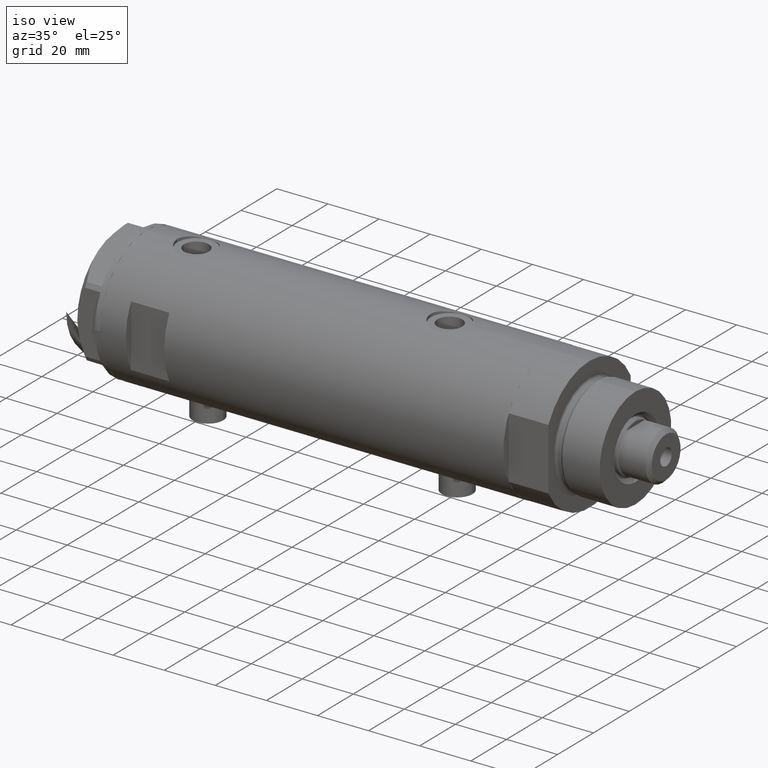
[diagram: clean part render]
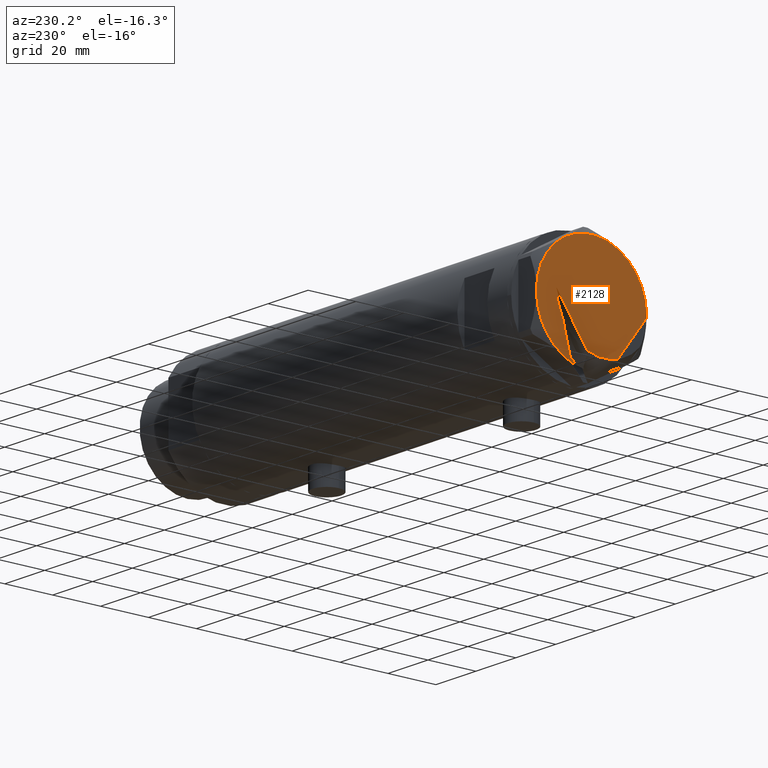
[diagram: tour spotlight — one face highlighted and labeled with its STEP entity id]
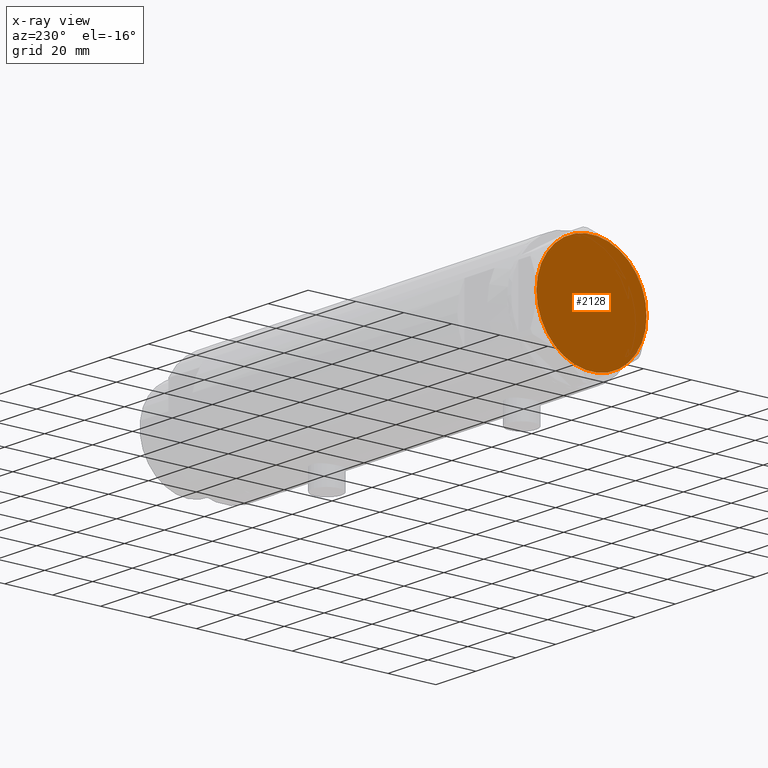
[diagram: x-ray of the same camera — body ghosted, this tour face saturated]
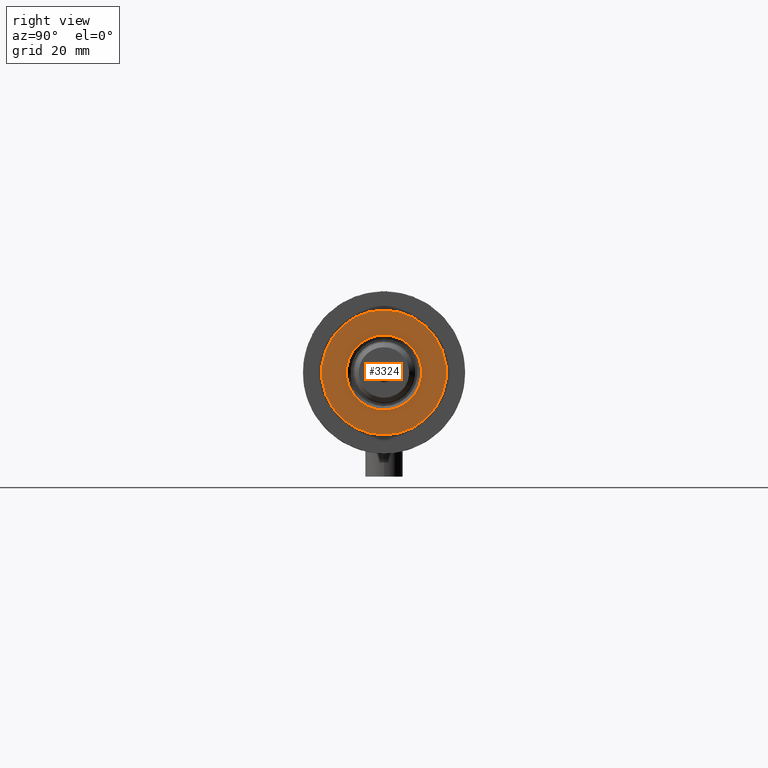
[diagram: tour spotlight — one face highlighted and labeled with its STEP entity id]
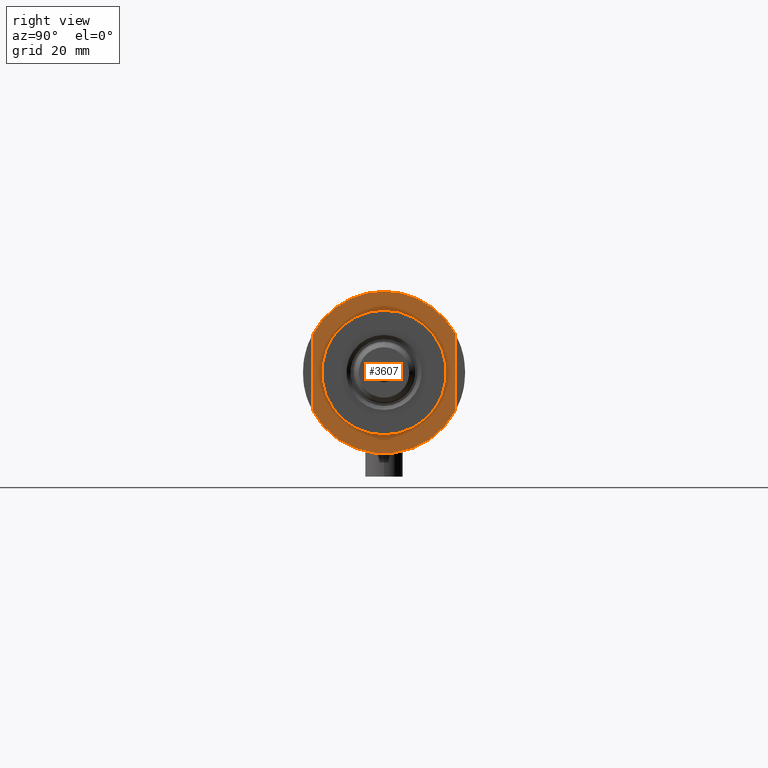
[diagram: tour spotlight — one face highlighted and labeled with its STEP entity id]
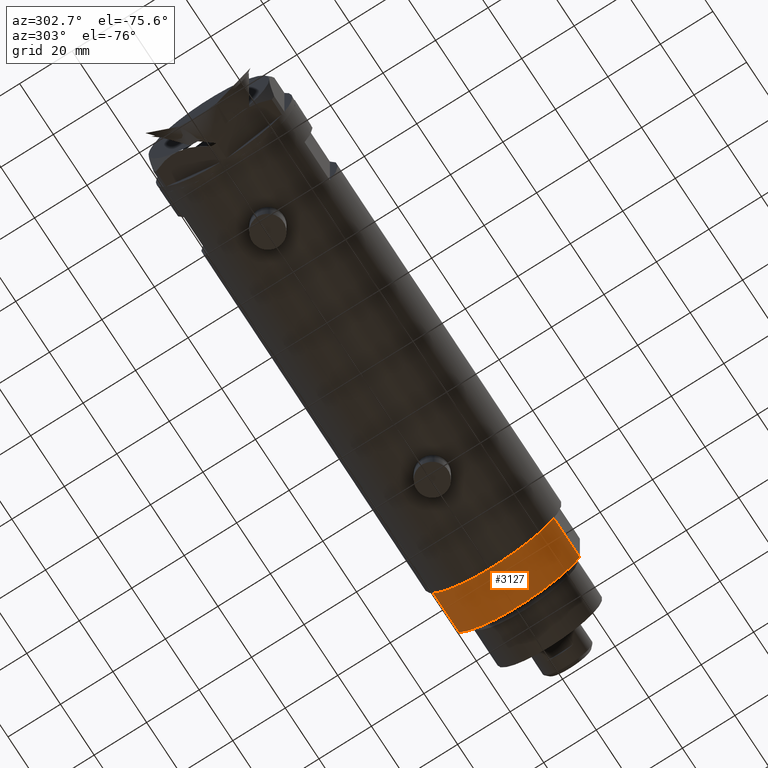
[diagram: tour spotlight — one face highlighted and labeled with its STEP entity id]
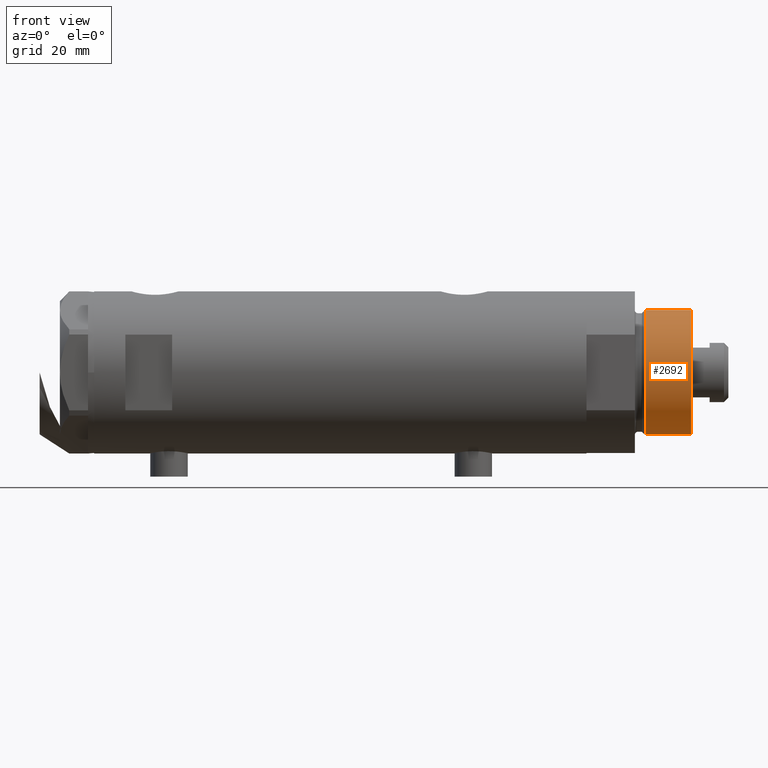
[diagram: tour spotlight — one face highlighted and labeled with its STEP entity id]
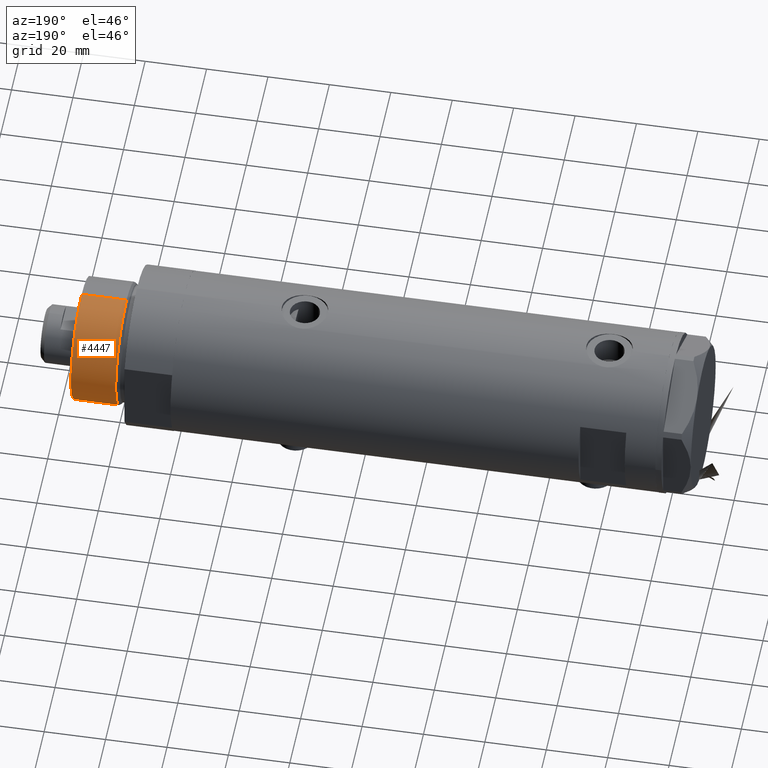
[diagram: tour spotlight — one face highlighted and labeled with its STEP entity id]
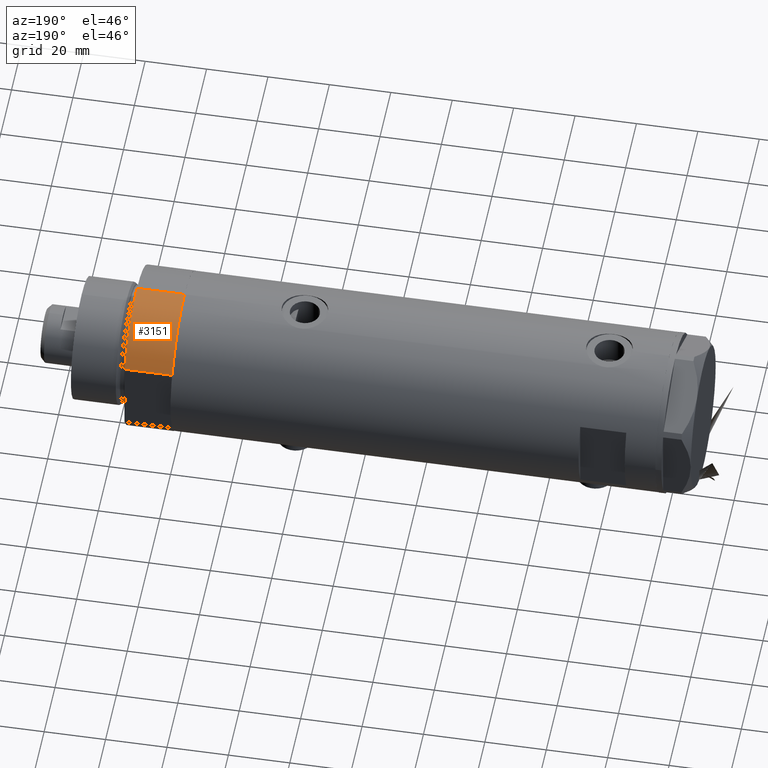
[diagram: tour spotlight — one face highlighted and labeled with its STEP entity id]
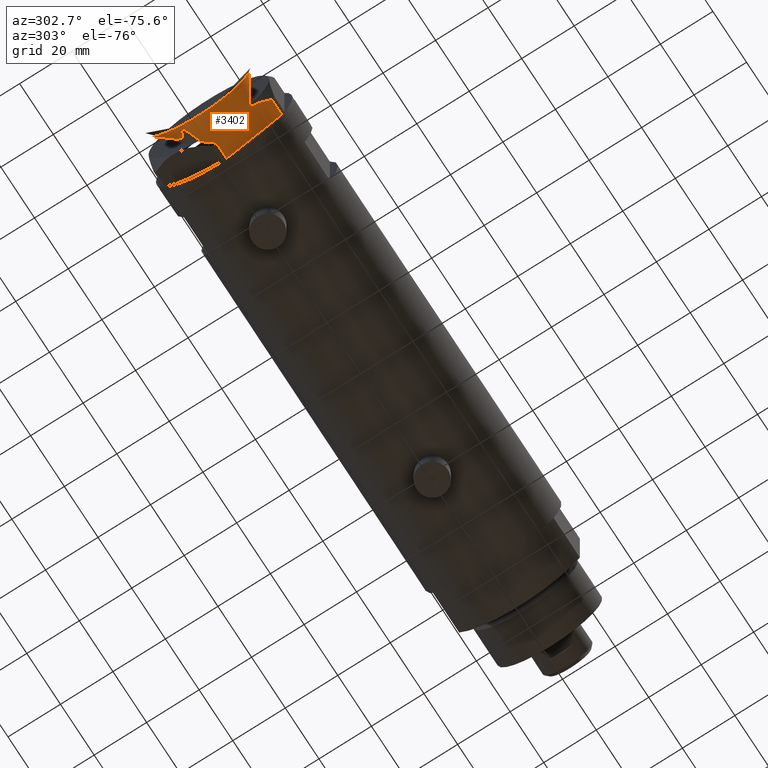
[diagram: tour spotlight — one face highlighted and labeled with its STEP entity id]
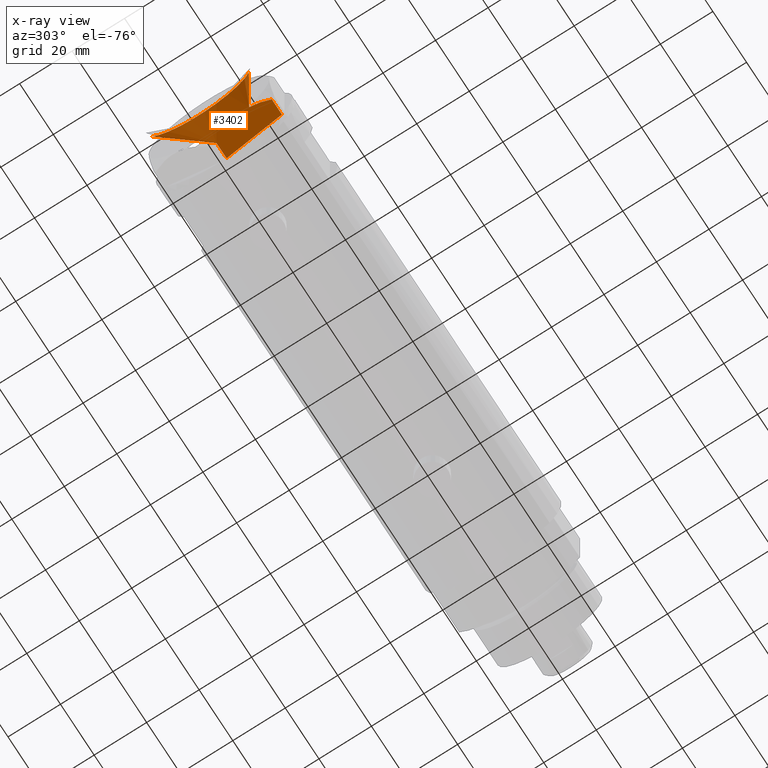
[diagram: x-ray of the same camera — body ghosted, this tour face saturated]
A machine part: a face-by-face anatomy tour. The part has 134 B-rep faces; the first image is the clean iso view, then the 8 largest visible faces are spotlighted one at a time (largest first), each with its STEP entity span.

Face 1 — auxiliary view, entity #2128. An x-ray twin of the same camera follows (body ghosted, this face saturated) — the face is partly hidden behind the body. In plain terms, the highlighted planar face has unit normal (-1, -0, 0).
Definition (entity closure, byte-faithful):
#86 = EDGE_CURVE ( 'NONE', #307, #201, #801, .T. ) ;
#131 = DIRECTION ( 'NONE',  ( 1.000000000000000000, 0.000000000000000000, 0.000000000000000000 ) ) ;
#201 = VERTEX_POINT ( 'NONE', #4628 ) ;
#259 = EDGE_CURVE ( 'NONE', #2559, #1196, #875, .T. ) ;
#307 = VERTEX_POINT ( 'NONE', #3010 ) ;
#353 = DIRECTION ( 'NONE',  ( 1.000000000000000000, 0.000000000000000000, 0.000000000000000000 ) ) ;
#428 = EDGE_CURVE ( 'NONE', #201, #2559, #1423, .T. ) ;
#458 = DIRECTION ( 'NONE',  ( 1.000000000000000000, 0.000000000000000000, 0.000000000000000000 ) ) ;
#629 = ORIENTED_EDGE ( 'NONE', *, *, #86, .T. ) ;
#787 = ORIENTED_EDGE ( 'NONE', *, *, #259, .T. ) ;
#801 = CIRCLE ( 'NONE', #2685, 23.00000000000004619 ) ;
#875 = CIRCLE ( 'NONE', #3112, 23.00000000000004619 ) ;
#921 = DIRECTION ( 'NONE',  ( 0.000000000000000000, 0.000000000000000000, 1.000000000000000000 ) ) ;
#946 = CARTESIAN_POINT ( 'NONE',  ( -23.00000000000004619, -8.112498833180673323E-14, 9.000000000000000000 ) ) ;
#947 = CIRCLE ( 'NONE', #3710, 23.00000000000004619 ) ;
#1110 = DIRECTION ( 'NONE',  ( 0.000000000000000000, 0.000000000000000000, 1.000000000000000000 ) ) ;
#1136 = CARTESIAN_POINT ( 'NONE',  ( 0.000000000000000000, 0.000000000000000000, 9.000000000000000000 ) ) ;
#1179 = EDGE_CURVE ( 'NONE', #1853, #2840, #947, .T. ) ;
#1196 = VERTEX_POINT ( 'NONE', #4643 ) ;
#1228 = EDGE_CURVE ( 'NONE', #1196, #1853, #4502, .T. ) ;
#1257 = PLANE ( 'NONE',  #3411 ) ;
#1292 = DIRECTION ( 'NONE',  ( 0.000000000000000000, 0.000000000000000000, 1.000000000000000000 ) ) ;
#1293 = DIRECTION ( 'NONE',  ( 1.000000000000000000, 0.000000000000000000, 0.000000000000000000 ) ) ;
#1423 = CIRCLE ( 'NONE', #3860, 23.00000000000004619 ) ;
#1547 = CARTESIAN_POINT ( 'NONE',  ( 0.000000000000000000, 0.000000000000000000, 9.000000000000000000 ) ) ;
#1615 = CARTESIAN_POINT ( 'NONE',  ( 0.000000000000000000, 0.000000000000000000, 9.000000000000000000 ) ) ;
#1850 = ORIENTED_EDGE ( 'NONE', *, *, #3762, .T. ) ;
#1852 = DIRECTION ( 'NONE',  ( 0.000000000000000000, 0.000000000000000000, 1.000000000000000000 ) ) ;
#1853 = VERTEX_POINT ( 'NONE', #4088 ) ;
#2128 = ADVANCED_FACE ( 'NONE', ( #3505 ), #1257, .T. ) ;
#2557 = CIRCLE ( 'NONE', #4831, 23.00000000000004619 ) ;
#2559 = VERTEX_POINT ( 'NONE', #946 ) ;
#2685 = AXIS2_PLACEMENT_3D ( 'NONE', #1136, #1110, #4136 ) ;
#2708 = ORIENTED_EDGE ( 'NONE', *, *, #428, .T. ) ;
#2840 = VERTEX_POINT ( 'NONE', #4792 ) ;
#2929 = ORIENTED_EDGE ( 'NONE', *, *, #1228, .T. ) ;
#3010 = CARTESIAN_POINT ( 'NONE',  ( 11.49999999999990408, 19.91858428704219364, 9.000000000000000000 ) ) ;
#3041 = ORIENTED_EDGE ( 'NONE', *, *, #1179, .T. ) ;
#3112 = AXIS2_PLACEMENT_3D ( 'NONE', #1547, #1852, #353 ) ;
#3178 = EDGE_LOOP ( 'NONE', ( #3041, #1850, #629, #2708, #787, #2929 ) ) ;
#3187 = CARTESIAN_POINT ( 'NONE',  ( 0.000000000000000000, 0.000000000000000000, 9.000000000000000000 ) ) ;
#3300 = DIRECTION ( 'NONE',  ( 1.000000000000000000, 0.000000000000000000, 0.000000000000000000 ) ) ;
#3411 = AXIS2_PLACEMENT_3D ( 'NONE', #4656, #3432, #4379 ) ;
#3432 = DIRECTION ( 'NONE',  ( 0.000000000000000000, 0.000000000000000000, 1.000000000000000000 ) ) ;
#3505 = FACE_OUTER_BOUND ( 'NONE', #3178, .T. ) ;
#3710 = AXIS2_PLACEMENT_3D ( 'NONE', #1615, #921, #458 ) ;
#3762 = EDGE_CURVE ( 'NONE', #2840, #307, #2557, .T. ) ;
#3860 = AXIS2_PLACEMENT_3D ( 'NONE', #3918, #1292, #131 ) ;
#3918 = CARTESIAN_POINT ( 'NONE',  ( 0.000000000000000000, 0.000000000000000000, 9.000000000000000000 ) ) ;
#3990 = DIRECTION ( 'NONE',  ( 0.000000000000000000, 0.000000000000000000, 1.000000000000000000 ) ) ;
#4088 = CARTESIAN_POINT ( 'NONE',  ( 11.50000000000018296, -19.91858428704203732, 9.000000000000000000 ) ) ;
#4136 = DIRECTION ( 'NONE',  ( 1.000000000000000000, 0.000000000000000000, 0.000000000000000000 ) ) ;
#4379 = DIRECTION ( 'NONE',  ( 1.000000000000000000, 0.000000000000000000, -0.000000000000000000 ) ) ;
#4395 = CARTESIAN_POINT ( 'NONE',  ( 0.000000000000000000, 0.000000000000000000, 9.000000000000000000 ) ) ;
#4502 = CIRCLE ( 'NONE', #4579, 23.00000000000004619 ) ;
#4579 = AXIS2_PLACEMENT_3D ( 'NONE', #3187, #4667, #1293 ) ;
#4628 = CARTESIAN_POINT ( 'NONE',  ( -11.50000000000004441, 19.91858428704211548, 9.000000000000000000 ) ) ;
#4643 = CARTESIAN_POINT ( 'NONE',  ( -11.49999999999990585, -19.91858428704219364, 9.000000000000000000 ) ) ;
#4656 = CARTESIAN_POINT ( 'NONE',  ( 0.000000000000000000, 0.000000000000000000, 9.000000000000000000 ) ) ;
#4667 = DIRECTION ( 'NONE',  ( 0.000000000000000000, 0.000000000000000000, 1.000000000000000000 ) ) ;
#4792 = CARTESIAN_POINT ( 'NONE',  ( 22.99999999999995026, 2.373657066004705010E-13, 9.000000000000000000 ) ) ;
#4831 = AXIS2_PLACEMENT_3D ( 'NONE', #4395, #3990, #3300 ) ;

Face 2 — right view, entity #3324. In plain terms, the highlighted planar face has unit normal (1, 0, -0).
Definition (entity closure, byte-faithful):
#211 = FACE_BOUND ( 'NONE', #4316, .T. ) ;
#315 = AXIS2_PLACEMENT_3D ( 'NONE', #1445, #4419, #2556 ) ;
#321 = CIRCLE ( 'NONE', #4420, 19.99999999999999645 ) ;
#408 = CIRCLE ( 'NONE', #1994, 12.05000000000000426 ) ;
#496 = VERTEX_POINT ( 'NONE', #1443 ) ;
#681 = EDGE_LOOP ( 'NONE', ( #2916, #2151 ) ) ;
#701 = ORIENTED_EDGE ( 'NONE', *, *, #2137, .T. ) ;
#1134 = CARTESIAN_POINT ( 'NONE',  ( 12.05000000000000426, 0.000000000000000000, 33.50000000000000000 ) ) ;
#1146 = CARTESIAN_POINT ( 'NONE',  ( 19.99999999999999645, 2.449293598294706119E-15, 33.50000000000000000 ) ) ;
#1294 = EDGE_CURVE ( 'NONE', #4154, #496, #4329, .T. ) ;
#1327 = DIRECTION ( 'NONE',  ( 0.000000000000000000, 0.000000000000000000, 1.000000000000000000 ) ) ;
#1412 = CARTESIAN_POINT ( 'NONE',  ( 0.000000000000000000, 0.000000000000000000, 33.50000000000000000 ) ) ;
#1443 = CARTESIAN_POINT ( 'NONE',  ( -19.99999999999999645, 0.000000000000000000, 33.50000000000000000 ) ) ;
#1445 = CARTESIAN_POINT ( 'NONE',  ( 0.000000000000000000, 0.000000000000000000, 33.50000000000000000 ) ) ;
#1609 = DIRECTION ( 'NONE',  ( 1.000000000000000000, 0.000000000000000000, 0.000000000000000000 ) ) ;
#1669 = EDGE_CURVE ( 'NONE', #2369, #2352, #2536, .T. ) ;
#1994 = AXIS2_PLACEMENT_3D ( 'NONE', #2908, #4721, #3954 ) ;
#2081 = EDGE_CURVE ( 'NONE', #496, #4154, #321, .T. ) ;
#2115 = CARTESIAN_POINT ( 'NONE',  ( 0.000000000000000000, 0.000000000000000000, 33.50000000000000000 ) ) ;
#2137 = EDGE_CURVE ( 'NONE', #2352, #2369, #408, .T. ) ;
#2151 = ORIENTED_EDGE ( 'NONE', *, *, #1294, .T. ) ;
#2351 = DIRECTION ( 'NONE',  ( 0.000000000000000000, 0.000000000000000000, 1.000000000000000000 ) ) ;
#2352 = VERTEX_POINT ( 'NONE', #1134 ) ;
#2369 = VERTEX_POINT ( 'NONE', #4025 ) ;
#2514 = PLANE ( 'NONE',  #2854 ) ;
#2536 = CIRCLE ( 'NONE', #2698, 12.05000000000000426 ) ;
#2556 = DIRECTION ( 'NONE',  ( 1.000000000000000000, 0.000000000000000000, 0.000000000000000000 ) ) ;
#2687 = ORIENTED_EDGE ( 'NONE', *, *, #1669, .T. ) ;
#2698 = AXIS2_PLACEMENT_3D ( 'NONE', #1412, #4683, #4003 ) ;
#2854 = AXIS2_PLACEMENT_3D ( 'NONE', #2115, #1327, #4655 ) ;
#2908 = CARTESIAN_POINT ( 'NONE',  ( 0.000000000000000000, 0.000000000000000000, 33.50000000000000000 ) ) ;
#2916 = ORIENTED_EDGE ( 'NONE', *, *, #2081, .T. ) ;
#3324 = ADVANCED_FACE ( 'NONE', ( #211, #4700 ), #2514, .T. ) ;
#3867 = CARTESIAN_POINT ( 'NONE',  ( 0.000000000000000000, 0.000000000000000000, 33.50000000000000000 ) ) ;
#3954 = DIRECTION ( 'NONE',  ( 1.000000000000000000, 0.000000000000000000, 0.000000000000000000 ) ) ;
#4003 = DIRECTION ( 'NONE',  ( 1.000000000000000000, 0.000000000000000000, 0.000000000000000000 ) ) ;
#4025 = CARTESIAN_POINT ( 'NONE',  ( -12.05000000000000426, 1.475699392972560823E-15, 33.50000000000000000 ) ) ;
#4154 = VERTEX_POINT ( 'NONE', #1146 ) ;
#4316 = EDGE_LOOP ( 'NONE', ( #701, #2687 ) ) ;
#4329 = CIRCLE ( 'NONE', #315, 19.99999999999999645 ) ;
#4419 = DIRECTION ( 'NONE',  ( 0.000000000000000000, 0.000000000000000000, 1.000000000000000000 ) ) ;
#4420 = AXIS2_PLACEMENT_3D ( 'NONE', #3867, #2351, #1609 ) ;
#4655 = DIRECTION ( 'NONE',  ( 1.000000000000000000, 0.000000000000000000, -0.000000000000000000 ) ) ;
#4683 = DIRECTION ( 'NONE',  ( -0.000000000000000000, -0.000000000000000000, -1.000000000000000000 ) ) ;
#4700 = FACE_OUTER_BOUND ( 'NONE', #681, .T. ) ;
#4721 = DIRECTION ( 'NONE',  ( -0.000000000000000000, -0.000000000000000000, -1.000000000000000000 ) ) ;

Face 3 — right view, entity #3607. In plain terms, the highlighted planar face has unit normal (1, 0, -0).
Definition (entity closure, byte-faithful):
#155 = VERTEX_POINT ( 'NONE', #465 ) ;
#195 = DIRECTION ( 'NONE',  ( -0.000000000000000000, -0.000000000000000000, -1.000000000000000000 ) ) ;
#221 = PLANE ( 'NONE',  #2639 ) ;
#465 = CARTESIAN_POINT ( 'NONE',  ( -12.12435565298214613, 23.00000000000000355, 15.50000000000000000 ) ) ;
#667 = ORIENTED_EDGE ( 'NONE', *, *, #740, .F. ) ;
#738 = DIRECTION ( 'NONE',  ( 1.000000000000000000, 0.000000000000000000, 0.000000000000000000 ) ) ;
#740 = EDGE_CURVE ( 'NONE', #155, #3440, #1576, .T. ) ;
#785 = CARTESIAN_POINT ( 'NONE',  ( -12.12435565298215145, -22.99999999999999645, 15.50000000000000000 ) ) ;
#811 = AXIS2_PLACEMENT_3D ( 'NONE', #3941, #195, #1696 ) ;
#865 = CARTESIAN_POINT ( 'NONE',  ( 12.12435565298214790, 23.00000000000000355, 15.50000000000000000 ) ) ;
#885 = CIRCLE ( 'NONE', #811, 20.00000000000000000 ) ;
#941 = CARTESIAN_POINT ( 'NONE',  ( -26.00000000000000355, 0.000000000000000000, 15.50000000000000000 ) ) ;
#968 = ORIENTED_EDGE ( 'NONE', *, *, #4159, .F. ) ;
#1011 = EDGE_CURVE ( 'NONE', #155, #1178, #3784, .T. ) ;
#1154 = AXIS2_PLACEMENT_3D ( 'NONE', #4828, #1503, #3020 ) ;
#1177 = ORIENTED_EDGE ( 'NONE', *, *, #1011, .T. ) ;
#1178 = VERTEX_POINT ( 'NONE', #941 ) ;
#1223 = VERTEX_POINT ( 'NONE', #1658 ) ;
#1322 = DIRECTION ( 'NONE',  ( 1.000000000000000000, 0.000000000000000000, 0.000000000000000000 ) ) ;
#1440 = FACE_BOUND ( 'NONE', #2156, .T. ) ;
#1446 = DIRECTION ( 'NONE',  ( 0.000000000000000000, 0.000000000000000000, 1.000000000000000000 ) ) ;
#1503 = DIRECTION ( 'NONE',  ( -0.000000000000000000, -0.000000000000000000, -1.000000000000000000 ) ) ;
#1576 = LINE ( 'NONE', #3455, #1983 ) ;
#1658 = CARTESIAN_POINT ( 'NONE',  ( -20.00000000000000000, 2.449293598294706513E-15, 15.50000000000000000 ) ) ;
#1696 = DIRECTION ( 'NONE',  ( 1.000000000000000000, 0.000000000000000000, 0.000000000000000000 ) ) ;
#1735 = CARTESIAN_POINT ( 'NONE',  ( -12.12435565298215323, -22.99999999999999645, 15.50000000000000000 ) ) ;
#1746 = EDGE_CURVE ( 'NONE', #1223, #3676, #885, .T. ) ;
#1854 = CARTESIAN_POINT ( 'NONE',  ( 0.000000000000000000, 0.000000000000000000, 15.50000000000000000 ) ) ;
#1937 = DIRECTION ( 'NONE',  ( 0.000000000000000000, 0.000000000000000000, 1.000000000000000000 ) ) ;
#1983 = VECTOR ( 'NONE', #1322, 1000.000000000000000 ) ;
#2042 = EDGE_LOOP ( 'NONE', ( #968, #2579, #667, #1177, #4376 ) ) ;
#2050 = EDGE_CURVE ( 'NONE', #2677, #3440, #4733, .T. ) ;
#2136 = AXIS2_PLACEMENT_3D ( 'NONE', #1854, #3360, #2315 ) ;
#2156 = EDGE_LOOP ( 'NONE', ( #4599, #4779 ) ) ;
#2315 = DIRECTION ( 'NONE',  ( 1.000000000000000000, 0.000000000000000000, 0.000000000000000000 ) ) ;
#2498 = FACE_OUTER_BOUND ( 'NONE', #2042, .T. ) ;
#2506 = VERTEX_POINT ( 'NONE', #1735 ) ;
#2577 = DIRECTION ( 'NONE',  ( 1.000000000000000000, 0.000000000000000000, -0.000000000000000000 ) ) ;
#2578 = AXIS2_PLACEMENT_3D ( 'NONE', #3754, #1446, #738 ) ;
#2579 = ORIENTED_EDGE ( 'NONE', *, *, #2050, .T. ) ;
#2639 = AXIS2_PLACEMENT_3D ( 'NONE', #3347, #4732, #2577 ) ;
#2655 = LINE ( 'NONE', #785, #2880 ) ;
#2677 = VERTEX_POINT ( 'NONE', #4545 ) ;
#2880 = VECTOR ( 'NONE', #4480, 1000.000000000000000 ) ;
#3020 = DIRECTION ( 'NONE',  ( 1.000000000000000000, 0.000000000000000000, 0.000000000000000000 ) ) ;
#3143 = CIRCLE ( 'NONE', #2578, 26.00000000000000355 ) ;
#3174 = DIRECTION ( 'NONE',  ( 1.000000000000000000, 0.000000000000000000, 0.000000000000000000 ) ) ;
#3286 = CIRCLE ( 'NONE', #1154, 20.00000000000000000 ) ;
#3347 = CARTESIAN_POINT ( 'NONE',  ( 0.000000000000000000, 0.000000000000000000, 15.50000000000000000 ) ) ;
#3360 = DIRECTION ( 'NONE',  ( 0.000000000000000000, 0.000000000000000000, 1.000000000000000000 ) ) ;
#3440 = VERTEX_POINT ( 'NONE', #865 ) ;
#3455 = CARTESIAN_POINT ( 'NONE',  ( -12.12435565298215145, 23.00000000000000355, 15.50000000000000000 ) ) ;
#3458 = CARTESIAN_POINT ( 'NONE',  ( 0.000000000000000000, 0.000000000000000000, 15.50000000000000000 ) ) ;
#3607 = ADVANCED_FACE ( 'NONE', ( #1440, #2498 ), #221, .T. ) ;
#3638 = AXIS2_PLACEMENT_3D ( 'NONE', #3458, #1937, #3174 ) ;
#3676 = VERTEX_POINT ( 'NONE', #4863 ) ;
#3754 = CARTESIAN_POINT ( 'NONE',  ( 0.000000000000000000, 0.000000000000000000, 15.50000000000000000 ) ) ;
#3784 = CIRCLE ( 'NONE', #2136, 26.00000000000000355 ) ;
#3941 = CARTESIAN_POINT ( 'NONE',  ( 0.000000000000000000, 0.000000000000000000, 15.50000000000000000 ) ) ;
#4159 = EDGE_CURVE ( 'NONE', #2677, #2506, #2655, .T. ) ;
#4200 = EDGE_CURVE ( 'NONE', #1178, #2506, #3143, .T. ) ;
#4376 = ORIENTED_EDGE ( 'NONE', *, *, #4200, .T. ) ;
#4480 = DIRECTION ( 'NONE',  ( -1.000000000000000000, -0.000000000000000000, -0.000000000000000000 ) ) ;
#4489 = EDGE_CURVE ( 'NONE', #3676, #1223, #3286, .T. ) ;
#4545 = CARTESIAN_POINT ( 'NONE',  ( 12.12435565298215323, -22.99999999999999645, 15.50000000000000000 ) ) ;
#4599 = ORIENTED_EDGE ( 'NONE', *, *, #4489, .T. ) ;
#4732 = DIRECTION ( 'NONE',  ( 0.000000000000000000, 0.000000000000000000, 1.000000000000000000 ) ) ;
#4733 = CIRCLE ( 'NONE', #3638, 26.00000000000000355 ) ;
#4779 = ORIENTED_EDGE ( 'NONE', *, *, #1746, .T. ) ;
#4828 = CARTESIAN_POINT ( 'NONE',  ( 0.000000000000000000, 0.000000000000000000, 15.50000000000000000 ) ) ;
#4863 = CARTESIAN_POINT ( 'NONE',  ( 20.00000000000000000, 0.000000000000000000, 15.50000000000000000 ) ) ;

Face 4 — auxiliary view, entity #3127. In plain terms, the highlighted cylindrical surface (partial cylindrical patch) has radius 26 mm, axis along (-1, -0, 0).
Definition (entity closure, byte-faithful):
#2 = DIRECTION ( 'NONE',  ( -0.000000000000000000, -0.000000000000000000, -1.000000000000000000 ) ) ;
#280 = DIRECTION ( 'NONE',  ( -1.000000000000000000, 0.000000000000000000, 0.000000000000000000 ) ) ;
#470 = ORIENTED_EDGE ( 'NONE', *, *, #2959, .T. ) ;
#557 = LINE ( 'NONE', #3128, #2923 ) ;
#573 = VECTOR ( 'NONE', #4684, 1000.000000000000000 ) ;
#692 = CARTESIAN_POINT ( 'NONE',  ( 12.12435565298215323, -22.99999999999999645, 0.000000000000000000 ) ) ;
#697 = EDGE_CURVE ( 'NONE', #3247, #2677, #557, .T. ) ;
#865 = CARTESIAN_POINT ( 'NONE',  ( 12.12435565298214790, 23.00000000000000355, 15.50000000000000000 ) ) ;
#1590 = CARTESIAN_POINT ( 'NONE',  ( 0.000000000000000000, 0.000000000000000000, 0.000000000000000000 ) ) ;
#1670 = AXIS2_PLACEMENT_3D ( 'NONE', #3386, #2, #280 ) ;
#1759 = AXIS2_PLACEMENT_3D ( 'NONE', #1590, #3119, #2681 ) ;
#1937 = DIRECTION ( 'NONE',  ( 0.000000000000000000, 0.000000000000000000, 1.000000000000000000 ) ) ;
#2043 = CARTESIAN_POINT ( 'NONE',  ( 12.12435565298214080, 23.00000000000000355, 0.000000000000000000 ) ) ;
#2050 = EDGE_CURVE ( 'NONE', #2677, #3440, #4733, .T. ) ;
#2219 = CYLINDRICAL_SURFACE ( 'NONE', #1670, 26.00000000000000355 ) ;
#2677 = VERTEX_POINT ( 'NONE', #4545 ) ;
#2681 = DIRECTION ( 'NONE',  ( 1.000000000000000000, 0.000000000000000000, 0.000000000000000000 ) ) ;
#2923 = VECTOR ( 'NONE', #3565, 1000.000000000000000 ) ;
#2959 = EDGE_CURVE ( 'NONE', #3398, #3440, #3917, .T. ) ;
#3087 = ORIENTED_EDGE ( 'NONE', *, *, #697, .F. ) ;
#3119 = DIRECTION ( 'NONE',  ( 0.000000000000000000, 0.000000000000000000, 1.000000000000000000 ) ) ;
#3127 = ADVANCED_FACE ( 'NONE', ( #4829 ), #2219, .T. ) ;
#3128 = CARTESIAN_POINT ( 'NONE',  ( 12.12435565298215323, -22.99999999999999645, 0.000000000000000000 ) ) ;
#3174 = DIRECTION ( 'NONE',  ( 1.000000000000000000, 0.000000000000000000, 0.000000000000000000 ) ) ;
#3202 = CARTESIAN_POINT ( 'NONE',  ( 12.12435565298215323, 23.00000000000000355, 0.000000000000000000 ) ) ;
#3247 = VERTEX_POINT ( 'NONE', #692 ) ;
#3264 = CIRCLE ( 'NONE', #1759, 26.00000000000000355 ) ;
#3386 = CARTESIAN_POINT ( 'NONE',  ( 0.000000000000000000, 0.000000000000000000, 15.50000000000000000 ) ) ;
#3398 = VERTEX_POINT ( 'NONE', #2043 ) ;
#3440 = VERTEX_POINT ( 'NONE', #865 ) ;
#3443 = ORIENTED_EDGE ( 'NONE', *, *, #2050, .F. ) ;
#3458 = CARTESIAN_POINT ( 'NONE',  ( 0.000000000000000000, 0.000000000000000000, 15.50000000000000000 ) ) ;
#3565 = DIRECTION ( 'NONE',  ( -0.000000000000000000, -0.000000000000000000, 1.000000000000000000 ) ) ;
#3638 = AXIS2_PLACEMENT_3D ( 'NONE', #3458, #1937, #3174 ) ;
#3706 = ORIENTED_EDGE ( 'NONE', *, *, #3927, .T. ) ;
#3917 = LINE ( 'NONE', #3202, #573 ) ;
#3927 = EDGE_CURVE ( 'NONE', #3247, #3398, #3264, .T. ) ;
#4545 = CARTESIAN_POINT ( 'NONE',  ( 12.12435565298215323, -22.99999999999999645, 15.50000000000000000 ) ) ;
#4673 = EDGE_LOOP ( 'NONE', ( #3443, #3087, #3706, #470 ) ) ;
#4684 = DIRECTION ( 'NONE',  ( -0.000000000000000000, -0.000000000000000000, 1.000000000000000000 ) ) ;
#4733 = CIRCLE ( 'NONE', #3638, 26.00000000000000355 ) ;
#4829 = FACE_OUTER_BOUND ( 'NONE', #4673, .T. ) ;

Face 5 — front view, entity #2692. In plain terms, the highlighted cylindrical surface (partial cylindrical patch) has radius 20 mm, axis along (-1, -0, 0).
Definition (entity closure, byte-faithful):
#33 = VERTEX_POINT ( 'NONE', #2670 ) ;
#62 = DIRECTION ( 'NONE',  ( -1.000000000000000000, 0.000000000000000000, 0.000000000000000000 ) ) ;
#277 = CARTESIAN_POINT ( 'NONE',  ( 0.000000000000000000, 0.000000000000000000, 18.87384048104053846 ) ) ;
#321 = CIRCLE ( 'NONE', #4420, 19.99999999999999645 ) ;
#330 = FACE_OUTER_BOUND ( 'NONE', #603, .T. ) ;
#496 = VERTEX_POINT ( 'NONE', #1443 ) ;
#531 = ORIENTED_EDGE ( 'NONE', *, *, #3602, .T. ) ;
#603 = EDGE_LOOP ( 'NONE', ( #1957, #2949, #531, #3423 ) ) ;
#657 = LINE ( 'NONE', #985, #1604 ) ;
#674 = DIRECTION ( 'NONE',  ( -0.000000000000000000, -0.000000000000000000, -1.000000000000000000 ) ) ;
#745 = CIRCLE ( 'NONE', #4019, 19.99999999999999645 ) ;
#814 = VERTEX_POINT ( 'NONE', #1454 ) ;
#985 = CARTESIAN_POINT ( 'NONE',  ( -19.99999999999999645, 0.000000000000000000, 33.50000000000000000 ) ) ;
#1021 = DIRECTION ( 'NONE',  ( -0.000000000000000000, -0.000000000000000000, -1.000000000000000000 ) ) ;
#1048 = CARTESIAN_POINT ( 'NONE',  ( 19.99999999999999645, 2.449293598294706119E-15, 33.50000000000000000 ) ) ;
#1072 = LINE ( 'NONE', #1048, #4427 ) ;
#1146 = CARTESIAN_POINT ( 'NONE',  ( 19.99999999999999645, 2.449293598294706119E-15, 33.50000000000000000 ) ) ;
#1443 = CARTESIAN_POINT ( 'NONE',  ( -19.99999999999999645, 0.000000000000000000, 33.50000000000000000 ) ) ;
#1454 = CARTESIAN_POINT ( 'NONE',  ( -19.99999999999999645, 0.000000000000000000, 18.87384048104053846 ) ) ;
#1604 = VECTOR ( 'NONE', #2103, 1000.000000000000000 ) ;
#1609 = DIRECTION ( 'NONE',  ( 1.000000000000000000, 0.000000000000000000, 0.000000000000000000 ) ) ;
#1957 = ORIENTED_EDGE ( 'NONE', *, *, #2680, .F. ) ;
#2081 = EDGE_CURVE ( 'NONE', #496, #4154, #321, .T. ) ;
#2103 = DIRECTION ( 'NONE',  ( -0.000000000000000000, -0.000000000000000000, -1.000000000000000000 ) ) ;
#2351 = DIRECTION ( 'NONE',  ( 0.000000000000000000, 0.000000000000000000, 1.000000000000000000 ) ) ;
#2670 = CARTESIAN_POINT ( 'NONE',  ( 19.99999999999999645, 2.449293598294706119E-15, 18.87384048104053846 ) ) ;
#2680 = EDGE_CURVE ( 'NONE', #4154, #33, #1072, .T. ) ;
#2692 = ADVANCED_FACE ( 'NONE', ( #330 ), #4454, .T. ) ;
#2794 = EDGE_CURVE ( 'NONE', #814, #33, #745, .T. ) ;
#2949 = ORIENTED_EDGE ( 'NONE', *, *, #2081, .F. ) ;
#3083 = DIRECTION ( 'NONE',  ( 1.000000000000000000, 0.000000000000000000, 0.000000000000000000 ) ) ;
#3423 = ORIENTED_EDGE ( 'NONE', *, *, #2794, .T. ) ;
#3437 = DIRECTION ( 'NONE',  ( -0.000000000000000000, -0.000000000000000000, 1.000000000000000000 ) ) ;
#3562 = AXIS2_PLACEMENT_3D ( 'NONE', #3691, #1021, #62 ) ;
#3602 = EDGE_CURVE ( 'NONE', #496, #814, #657, .T. ) ;
#3691 = CARTESIAN_POINT ( 'NONE',  ( 0.000000000000000000, 0.000000000000000000, 33.50000000000000000 ) ) ;
#3867 = CARTESIAN_POINT ( 'NONE',  ( 0.000000000000000000, 0.000000000000000000, 33.50000000000000000 ) ) ;
#4019 = AXIS2_PLACEMENT_3D ( 'NONE', #277, #3437, #3083 ) ;
#4154 = VERTEX_POINT ( 'NONE', #1146 ) ;
#4420 = AXIS2_PLACEMENT_3D ( 'NONE', #3867, #2351, #1609 ) ;
#4427 = VECTOR ( 'NONE', #674, 1000.000000000000000 ) ;
#4454 = CYLINDRICAL_SURFACE ( 'NONE', #3562, 19.99999999999999645 ) ;

Face 6 — auxiliary view, entity #4447. In plain terms, the highlighted cylindrical surface (partial cylindrical patch) has radius 20 mm, axis along (-1, -0, 0).
Definition (entity closure, byte-faithful):
#33 = VERTEX_POINT ( 'NONE', #2670 ) ;
#164 = EDGE_CURVE ( 'NONE', #33, #814, #942, .T. ) ;
#238 = ORIENTED_EDGE ( 'NONE', *, *, #164, .T. ) ;
#315 = AXIS2_PLACEMENT_3D ( 'NONE', #1445, #4419, #2556 ) ;
#460 = ORIENTED_EDGE ( 'NONE', *, *, #3602, .F. ) ;
#496 = VERTEX_POINT ( 'NONE', #1443 ) ;
#657 = LINE ( 'NONE', #985, #1604 ) ;
#674 = DIRECTION ( 'NONE',  ( -0.000000000000000000, -0.000000000000000000, -1.000000000000000000 ) ) ;
#814 = VERTEX_POINT ( 'NONE', #1454 ) ;
#942 = CIRCLE ( 'NONE', #4321, 19.99999999999999645 ) ;
#985 = CARTESIAN_POINT ( 'NONE',  ( -19.99999999999999645, 0.000000000000000000, 33.50000000000000000 ) ) ;
#1026 = CYLINDRICAL_SURFACE ( 'NONE', #4292, 19.99999999999999645 ) ;
#1048 = CARTESIAN_POINT ( 'NONE',  ( 19.99999999999999645, 2.449293598294706119E-15, 33.50000000000000000 ) ) ;
#1072 = LINE ( 'NONE', #1048, #4427 ) ;
#1146 = CARTESIAN_POINT ( 'NONE',  ( 19.99999999999999645, 2.449293598294706119E-15, 33.50000000000000000 ) ) ;
#1294 = EDGE_CURVE ( 'NONE', #4154, #496, #4329, .T. ) ;
#1443 = CARTESIAN_POINT ( 'NONE',  ( -19.99999999999999645, 0.000000000000000000, 33.50000000000000000 ) ) ;
#1445 = CARTESIAN_POINT ( 'NONE',  ( 0.000000000000000000, 0.000000000000000000, 33.50000000000000000 ) ) ;
#1454 = CARTESIAN_POINT ( 'NONE',  ( -19.99999999999999645, 0.000000000000000000, 18.87384048104053846 ) ) ;
#1604 = VECTOR ( 'NONE', #2103, 1000.000000000000000 ) ;
#1741 = CARTESIAN_POINT ( 'NONE',  ( 0.000000000000000000, 0.000000000000000000, 33.50000000000000000 ) ) ;
#1952 = ORIENTED_EDGE ( 'NONE', *, *, #1294, .F. ) ;
#2002 = DIRECTION ( 'NONE',  ( -0.000000000000000000, -0.000000000000000000, 1.000000000000000000 ) ) ;
#2103 = DIRECTION ( 'NONE',  ( -0.000000000000000000, -0.000000000000000000, -1.000000000000000000 ) ) ;
#2166 = DIRECTION ( 'NONE',  ( -1.000000000000000000, 0.000000000000000000, 0.000000000000000000 ) ) ;
#2465 = DIRECTION ( 'NONE',  ( -0.000000000000000000, -0.000000000000000000, -1.000000000000000000 ) ) ;
#2556 = DIRECTION ( 'NONE',  ( 1.000000000000000000, 0.000000000000000000, 0.000000000000000000 ) ) ;
#2670 = CARTESIAN_POINT ( 'NONE',  ( 19.99999999999999645, 2.449293598294706119E-15, 18.87384048104053846 ) ) ;
#2680 = EDGE_CURVE ( 'NONE', #4154, #33, #1072, .T. ) ;
#2691 = DIRECTION ( 'NONE',  ( 1.000000000000000000, 0.000000000000000000, 0.000000000000000000 ) ) ;
#2724 = ORIENTED_EDGE ( 'NONE', *, *, #2680, .T. ) ;
#3602 = EDGE_CURVE ( 'NONE', #496, #814, #657, .T. ) ;
#3614 = FACE_OUTER_BOUND ( 'NONE', #4758, .T. ) ;
#4154 = VERTEX_POINT ( 'NONE', #1146 ) ;
#4183 = CARTESIAN_POINT ( 'NONE',  ( 0.000000000000000000, 0.000000000000000000, 18.87384048104053846 ) ) ;
#4292 = AXIS2_PLACEMENT_3D ( 'NONE', #1741, #2465, #2166 ) ;
#4321 = AXIS2_PLACEMENT_3D ( 'NONE', #4183, #2002, #2691 ) ;
#4329 = CIRCLE ( 'NONE', #315, 19.99999999999999645 ) ;
#4419 = DIRECTION ( 'NONE',  ( 0.000000000000000000, 0.000000000000000000, 1.000000000000000000 ) ) ;
#4427 = VECTOR ( 'NONE', #674, 1000.000000000000000 ) ;
#4447 = ADVANCED_FACE ( 'NONE', ( #3614 ), #1026, .T. ) ;
#4758 = EDGE_LOOP ( 'NONE', ( #1952, #2724, #238, #460 ) ) ;

Face 7 — auxiliary view, entity #3151. In plain terms, the highlighted cylindrical surface (partial cylindrical patch) has radius 26 mm, axis along (-1, -0, 0).
Definition (entity closure, byte-faithful):
#60 = CARTESIAN_POINT ( 'NONE',  ( -12.12435565298215145, 23.00000000000000355, 0.000000000000000000 ) ) ;
#104 = CIRCLE ( 'NONE', #669, 26.00000000000000355 ) ;
#155 = VERTEX_POINT ( 'NONE', #465 ) ;
#165 = VECTOR ( 'NONE', #1838, 1000.000000000000000 ) ;
#312 = CARTESIAN_POINT ( 'NONE',  ( -12.12435565298215145, 23.00000000000000355, 0.000000000000000000 ) ) ;
#443 = LINE ( 'NONE', #3107, #1239 ) ;
#465 = CARTESIAN_POINT ( 'NONE',  ( -12.12435565298214613, 23.00000000000000355, 15.50000000000000000 ) ) ;
#537 = DIRECTION ( 'NONE',  ( -0.000000000000000000, -0.000000000000000000, -1.000000000000000000 ) ) ;
#669 = AXIS2_PLACEMENT_3D ( 'NONE', #1099, #1524, #3042 ) ;
#765 = ORIENTED_EDGE ( 'NONE', *, *, #3357, .T. ) ;
#941 = CARTESIAN_POINT ( 'NONE',  ( -26.00000000000000355, 0.000000000000000000, 15.50000000000000000 ) ) ;
#1011 = EDGE_CURVE ( 'NONE', #155, #1178, #3784, .T. ) ;
#1071 = DIRECTION ( 'NONE',  ( -1.000000000000000000, 0.000000000000000000, 0.000000000000000000 ) ) ;
#1099 = CARTESIAN_POINT ( 'NONE',  ( 0.000000000000000000, 0.000000000000000000, 0.000000000000000000 ) ) ;
#1131 = AXIS2_PLACEMENT_3D ( 'NONE', #2160, #4372, #1071 ) ;
#1178 = VERTEX_POINT ( 'NONE', #941 ) ;
#1231 = FACE_OUTER_BOUND ( 'NONE', #1834, .T. ) ;
#1239 = VECTOR ( 'NONE', #537, 1000.000000000000000 ) ;
#1323 = CARTESIAN_POINT ( 'NONE',  ( -26.00000000000000355, 0.000000000000000000, 0.000000000000000000 ) ) ;
#1524 = DIRECTION ( 'NONE',  ( 0.000000000000000000, 0.000000000000000000, 1.000000000000000000 ) ) ;
#1732 = ORIENTED_EDGE ( 'NONE', *, *, #4363, .F. ) ;
#1834 = EDGE_LOOP ( 'NONE', ( #1732, #4201, #4322, #765 ) ) ;
#1838 = DIRECTION ( 'NONE',  ( -0.000000000000000000, -0.000000000000000000, 1.000000000000000000 ) ) ;
#1854 = CARTESIAN_POINT ( 'NONE',  ( 0.000000000000000000, 0.000000000000000000, 15.50000000000000000 ) ) ;
#1962 = EDGE_CURVE ( 'NONE', #3998, #155, #2575, .T. ) ;
#2136 = AXIS2_PLACEMENT_3D ( 'NONE', #1854, #3360, #2315 ) ;
#2160 = CARTESIAN_POINT ( 'NONE',  ( 0.000000000000000000, 0.000000000000000000, 15.50000000000000000 ) ) ;
#2215 = CYLINDRICAL_SURFACE ( 'NONE', #1131, 26.00000000000000355 ) ;
#2315 = DIRECTION ( 'NONE',  ( 1.000000000000000000, 0.000000000000000000, 0.000000000000000000 ) ) ;
#2512 = VERTEX_POINT ( 'NONE', #1323 ) ;
#2575 = LINE ( 'NONE', #312, #165 ) ;
#3042 = DIRECTION ( 'NONE',  ( 1.000000000000000000, 0.000000000000000000, 0.000000000000000000 ) ) ;
#3107 = CARTESIAN_POINT ( 'NONE',  ( -26.00000000000000355, 0.000000000000000000, 15.50000000000000000 ) ) ;
#3151 = ADVANCED_FACE ( 'NONE', ( #1231 ), #2215, .T. ) ;
#3357 = EDGE_CURVE ( 'NONE', #3998, #2512, #104, .T. ) ;
#3360 = DIRECTION ( 'NONE',  ( 0.000000000000000000, 0.000000000000000000, 1.000000000000000000 ) ) ;
#3784 = CIRCLE ( 'NONE', #2136, 26.00000000000000355 ) ;
#3998 = VERTEX_POINT ( 'NONE', #60 ) ;
#4201 = ORIENTED_EDGE ( 'NONE', *, *, #1011, .F. ) ;
#4322 = ORIENTED_EDGE ( 'NONE', *, *, #1962, .F. ) ;
#4363 = EDGE_CURVE ( 'NONE', #1178, #2512, #443, .T. ) ;
#4372 = DIRECTION ( 'NONE',  ( -0.000000000000000000, -0.000000000000000000, -1.000000000000000000 ) ) ;

Face 8 — auxiliary view, entity #3402. An x-ray twin of the same camera follows (body ghosted, this face saturated) — the face is partly hidden behind the body. In plain terms, the highlighted planar face has unit normal (0, 0.5, 0.866).
Definition (entity closure, byte-faithful):
#159 = DIRECTION ( 'NONE',  ( 0.5000000000000009992, -0.8660254037844381525, 0.000000000000000000 ) ) ;
#169 = CARTESIAN_POINT ( 'NONE',  ( -22.03005154776144181, 13.83905619136131371, 5.983800287807625295 ) ) ;
#195 = DIRECTION ( 'NONE',  ( -0.000000000000000000, -0.000000000000000000, -1.000000000000000000 ) ) ;
#201 = VERTEX_POINT ( 'NONE', #4628 ) ;
#235 = CARTESIAN_POINT ( 'NONE',  ( -22.03005154776144181, 13.83905619136131371, 5.983800287807625295 ) ) ;
#404 = ORIENTED_EDGE ( 'NONE', *, *, #1540, .T. ) ;
#520 = CARTESIAN_POINT ( 'NONE',  ( -0.9999999999999089617, 25.98076211353316367, 0.000000000000000000 ) ) ;
#532 = VERTEX_POINT ( 'NONE', #520 ) ;
#581 = EDGE_CURVE ( 'NONE', #3801, #582, #2884, .T. ) ;
#582 = VERTEX_POINT ( 'NONE', #169 ) ;
#605 = CARTESIAN_POINT ( 'NONE',  ( -0.9699484522385775076, 25.99811238272273783, 9.000000000000000000 ) ) ;
#642 = CARTESIAN_POINT ( 'NONE',  ( 0.000000000000000000, 26.55811238272274366, 0.000000000000000000 ) ) ;
#643 = VECTOR ( 'NONE', #2049, 1000.000000000000000 ) ;
#645 = VECTOR ( 'NONE', #4008, 1000.000000000000227 ) ;
#647 = CARTESIAN_POINT ( 'NONE',  ( -13.32175508098984729, 18.86679350063496585, 9.000000000000088818 ) ) ;
#655 = VECTOR ( 'NONE', #3484, 1000.000000000000227 ) ;
#687 = CARTESIAN_POINT ( 'NONE',  ( -22.00000000000008171, 13.85640646055089498, 0.000000000000000000 ) ) ;
#811 = AXIS2_PLACEMENT_3D ( 'NONE', #3941, #195, #1696 ) ;
#850 = ORIENTED_EDGE ( 'NONE', *, *, #1654, .T. ) ;
#885 = CIRCLE ( 'NONE', #811, 20.00000000000000000 ) ;
#939 = LINE ( 'NONE', #605, #3482 ) ;
#974 = CARTESIAN_POINT ( 'NONE',  ( -17.77001848220191604, 16.29858742851882170, 7.892128867758443356 ) ) ;
#1013 = ORIENTED_EDGE ( 'NONE', *, *, #2599, .T. ) ;
#1223 = VERTEX_POINT ( 'NONE', #1658 ) ;
#1246 = B_SPLINE_CURVE_WITH_KNOTS ( 'NONE', 3,
 ( #3616, #647, #2806, #3284, #974, #4405, #2466, #3911, #1303, #235 ),
 .UNSPECIFIED., .F., .F.,
 ( 4, 2, 2, 2, 4 ),
 ( 0.01376519981810312397, 0.01998941321701588544, 0.02154546656674408145, 0.02310151991647227399, 0.02621362661592866600 ),
 .UNSPECIFIED. ) ;
#1258 = VERTEX_POINT ( 'NONE', #687 ) ;
#1259 = EDGE_CURVE ( 'NONE', #3459, #532, #2895, .T. ) ;
#1302 = CARTESIAN_POINT ( 'NONE',  ( -22.03005154776142760, 13.83905619136131904, 0.000000000000000000 ) ) ;
#1303 = CARTESIAN_POINT ( 'NONE',  ( -21.20080365460318461, 14.31782268570115768, 6.431317509509388408 ) ) ;
#1540 = EDGE_CURVE ( 'NONE', #1258, #3801, #2424, .T. ) ;
#1654 = EDGE_CURVE ( 'NONE', #4658, #3459, #939, .T. ) ;
#1658 = CARTESIAN_POINT ( 'NONE',  ( -20.00000000000000000, 2.449293598294706513E-15, 15.50000000000000000 ) ) ;
#1696 = DIRECTION ( 'NONE',  ( 1.000000000000000000, 0.000000000000000000, 0.000000000000000000 ) ) ;
#1746 = EDGE_CURVE ( 'NONE', #1223, #3676, #885, .T. ) ;
#1816 = ORIENTED_EDGE ( 'NONE', *, *, #1259, .T. ) ;
#2003 = AXIS2_PLACEMENT_3D ( 'NONE', #3543, #159, #2370 ) ;
#2049 = DIRECTION ( 'NONE',  ( 0.000000000000000000, 0.000000000000000000, 1.000000000000000000 ) ) ;
#2087 = LINE ( 'NONE', #642, #3486 ) ;
#2194 = EDGE_CURVE ( 'NONE', #201, #582, #1246, .T. ) ;
#2370 = DIRECTION ( 'NONE',  ( 0.8660254037844380415, 0.5000000000000008882, 0.000000000000000000 ) ) ;
#2424 = LINE ( 'NONE', #3135, #655 ) ;
#2466 = CARTESIAN_POINT ( 'NONE',  ( -19.07486218896994856, 15.54523556316589961, 7.397272853991406549 ) ) ;
#2599 = EDGE_CURVE ( 'NONE', #532, #1258, #2087, .T. ) ;
#2806 = CARTESIAN_POINT ( 'NONE',  ( -15.11535457301033247, 17.83125835109856183, 8.707651728477001640 ) ) ;
#2812 = CARTESIAN_POINT ( 'NONE',  ( -22.03005154776143115, 13.83905619136131726, 9.000000000000000000 ) ) ;
#2884 = LINE ( 'NONE', #2812, #643 ) ;
#2895 = LINE ( 'NONE', #3273, #645 ) ;
#2984 = ORIENTED_EDGE ( 'NONE', *, *, #581, .T. ) ;
#3135 = CARTESIAN_POINT ( 'NONE',  ( 0.000000000000000000, 26.55811238272274366, 0.000000000000000000 ) ) ;
#3152 = PLANE ( 'NONE',  #2003 ) ;
#3201 = DIRECTION ( 'NONE',  ( 0.000000000000000000, 0.000000000000000000, -1.000000000000000000 ) ) ;
#3273 = CARTESIAN_POINT ( 'NONE',  ( 0.000000000000000000, 26.55811238272274366, 0.000000000000000000 ) ) ;
#3284 = CARTESIAN_POINT ( 'NONE',  ( -17.32831362639718975, 16.55360584592005679, 8.040681765829335248 ) ) ;
#3402 = ADVANCED_FACE ( 'NONE', ( #3503 ), #3152, .F. ) ;
#3459 = VERTEX_POINT ( 'NONE', #3863 ) ;
#3482 = VECTOR ( 'NONE', #3201, 1000.000000000000000 ) ;
#3484 = DIRECTION ( 'NONE',  ( -0.8660254037844380415, -0.5000000000000008882, 0.000000000000000000 ) ) ;
#3486 = VECTOR ( 'NONE', #3994, 1000.000000000000227 ) ;
#3503 = FACE_OUTER_BOUND ( 'NONE', #4383, .T. ) ;
#3543 = CARTESIAN_POINT ( 'NONE',  ( 0.000000000000000000, 26.55811238272274366, 9.000000000000000000 ) ) ;
#3616 = CARTESIAN_POINT ( 'NONE',  ( -11.50000000000004441, 19.91858428704211548, 9.000000000000000000 ) ) ;
#3676 = VERTEX_POINT ( 'NONE', #4863 ) ;
#3801 = VERTEX_POINT ( 'NONE', #1302 ) ;
#3824 = ORIENTED_EDGE ( 'NONE', *, *, #1746, .F. ) ;
#3863 = CARTESIAN_POINT ( 'NONE',  ( -0.9699484522385772856, 25.99811238272273783, 0.000000000000000000 ) ) ;
#3911 = CARTESIAN_POINT ( 'NONE',  ( -20.35958612119326361, 14.80349985506240884, 6.844201024438374859 ) ) ;
#3941 = CARTESIAN_POINT ( 'NONE',  ( 0.000000000000000000, 0.000000000000000000, 15.50000000000000000 ) ) ;
#3994 = DIRECTION ( 'NONE',  ( -0.8660254037844380415, -0.5000000000000008882, 0.000000000000000000 ) ) ;
#4008 = DIRECTION ( 'NONE',  ( -0.8660254037844380415, -0.5000000000000008882, 0.000000000000000000 ) ) ;
#4033 = CARTESIAN_POINT ( 'NONE',  ( -0.9699484522384356211, 25.99811238272282310, 5.983800287807548912 ) ) ;
#4158 = ORIENTED_EDGE ( 'NONE', *, *, #2194, .F. ) ;
#4216 = ORIENTED_EDGE ( 'NONE', *, *, #3824, .F. ) ;
#4383 = EDGE_LOOP ( 'NONE', ( #404, #2984, #4158, #4216, #850, #1816, #1013 ) ) ;
#4405 = CARTESIAN_POINT ( 'NONE',  ( -18.64279229058394804, 15.79469123530778951, 7.570552255229721084 ) ) ;
#4628 = CARTESIAN_POINT ( 'NONE',  ( -11.50000000000004441, 19.91858428704211548, 9.000000000000000000 ) ) ;
#4658 = VERTEX_POINT ( 'NONE', #4033 ) ;
#4863 = CARTESIAN_POINT ( 'NONE',  ( 20.00000000000000000, 0.000000000000000000, 15.50000000000000000 ) ) ;